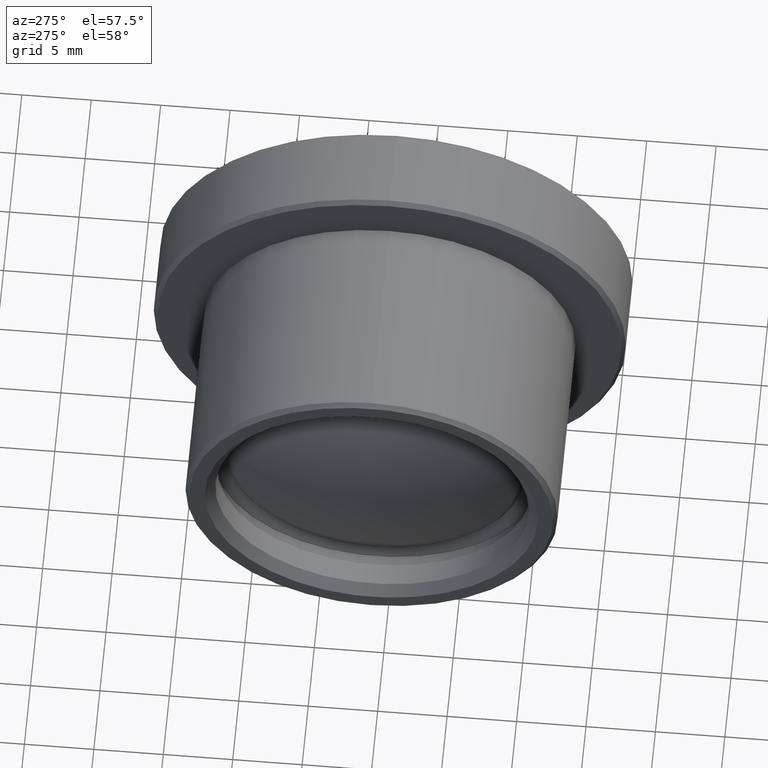
[diagram: clean part render]
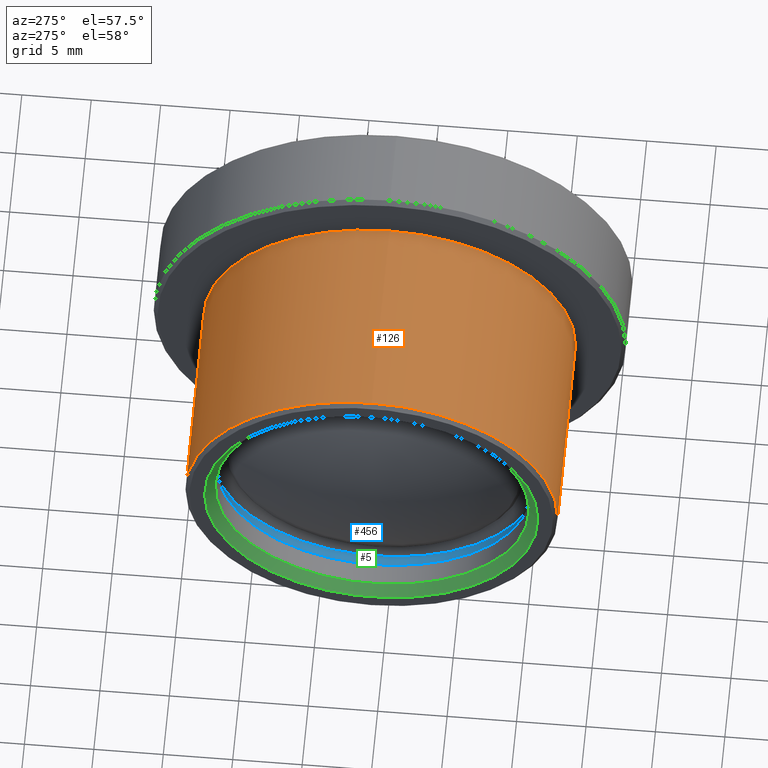
[diagram: same view with three faces highlighted in distinct colors, each labeled with its STEP entity id]
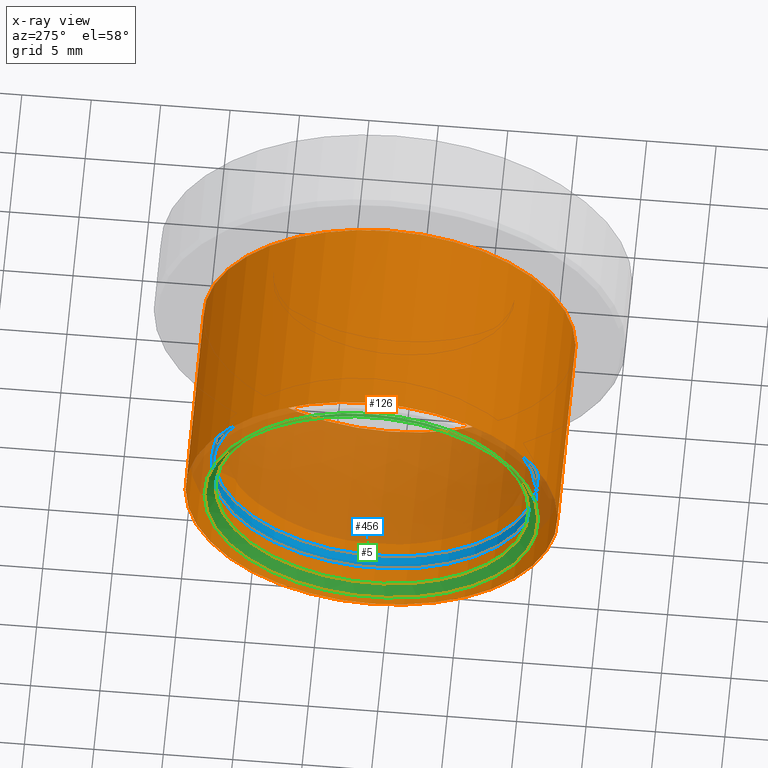
[diagram: x-ray of the same camera — body ghosted, the three highlighted faces saturated]
A machine part, auxiliary view with three faces highlighted in distinct colors.
The next image is the same camera in x-ray (body ghosted, the three faces saturated) — at least one of them is partly hidden behind the body in this view.
Their STEP definitions:

[orange] entity #126 — the highlighted cylindrical surface (bore or boss wall) has radius 13.4 mm, axis along (-1, -0, -0).
#14 = CARTESIAN_POINT ( 'NONE',  ( 7641.280875762231517, -204.0133495471515630, 0.000000000000000000 ) ) ;
#16 = CIRCLE ( 'NONE', #473, 13.40000000572944039 ) ;
#27 = DIRECTION ( 'NONE',  ( -1.000000000000000000, -0.000000000000000000, -0.000000000000000000 ) ) ;
#38 = FACE_OUTER_BOUND ( 'NONE', #330, .T. ) ;
#43 = CARTESIAN_POINT ( 'NONE',  ( 7655.980875221367569, -204.0133495471515630, 13.40000000572944039 ) ) ;
#49 = DIRECTION ( 'NONE',  ( 0.000000000000000000, 0.000000000000000000, 1.000000000000000000 ) ) ;
#73 = CARTESIAN_POINT ( 'NONE',  ( 7639.495609507284826, -204.0133495471515630, 0.000000000000000000 ) ) ;
#126 = ADVANCED_FACE ( 'NONE', ( #266, #38 ), #416, .T. ) ;
#137 = CARTESIAN_POINT ( 'NONE',  ( 7655.980875221367569, -204.0133495471515630, 0.000000000000000000 ) ) ;
#190 = DIRECTION ( 'NONE',  ( -1.000000000000000000, -0.000000000000000000, -0.000000000000000000 ) ) ;
#201 = EDGE_CURVE ( 'NONE', #270, #270, #16, .T. ) ;
#223 = CIRCLE ( 'NONE', #288, 13.40000000572944039 ) ;
#250 = ORIENTED_EDGE ( 'NONE', *, *, #201, .T. ) ;
#266 = FACE_OUTER_BOUND ( 'NONE', #290, .T. ) ;
#270 = VERTEX_POINT ( 'NONE', #307 ) ;
#281 = DIRECTION ( 'NONE',  ( 1.000000000000000000, 0.000000000000000000, 0.000000000000000000 ) ) ;
#288 = AXIS2_PLACEMENT_3D ( 'NONE', #137, #27, #363 ) ;
#290 = EDGE_LOOP ( 'NONE', ( #250 ) ) ;
#307 = CARTESIAN_POINT ( 'NONE',  ( 7641.280875762231517, -204.0133495471515630, 13.40000000572944039 ) ) ;
#330 = EDGE_LOOP ( 'NONE', ( #447 ) ) ;
#363 = DIRECTION ( 'NONE',  ( 0.000000000000000000, 0.000000000000000000, 1.000000000000000000 ) ) ;
#376 = DIRECTION ( 'NONE',  ( 0.000000000000000000, 0.000000000000000000, 1.000000000000000000 ) ) ;
#410 = EDGE_CURVE ( 'NONE', #415, #415, #223, .T. ) ;
#415 = VERTEX_POINT ( 'NONE', #43 ) ;
#416 = CYLINDRICAL_SURFACE ( 'NONE', #483, 13.40000000572944039 ) ;
#447 = ORIENTED_EDGE ( 'NONE', *, *, #410, .T. ) ;
#473 = AXIS2_PLACEMENT_3D ( 'NONE', #14, #281, #49 ) ;
#483 = AXIS2_PLACEMENT_3D ( 'NONE', #73, #190, #376 ) ;

[blue] entity #456 — the highlighted cylindrical surface (bore or boss wall) has radius 11.7 mm, axis along (-1, -0, -0).
#41 = AXIS2_PLACEMENT_3D ( 'NONE', #462, #115, #274 ) ;
#63 = AXIS2_PLACEMENT_3D ( 'NONE', #289, #440, #212 ) ;
#67 = DIRECTION ( 'NONE',  ( 0.000000000000000000, 0.000000000000000000, 1.000000000000000000 ) ) ;
#99 = CIRCLE ( 'NONE', #63, 11.70000034783300080 ) ;
#104 = CYLINDRICAL_SURFACE ( 'NONE', #240, 11.70000034783300080 ) ;
#113 = VERTEX_POINT ( 'NONE', #424 ) ;
#115 = DIRECTION ( 'NONE',  ( -1.000000000000000000, -0.000000000000000000, -0.000000000000000000 ) ) ;
#133 = FACE_OUTER_BOUND ( 'NONE', #179, .T. ) ;
#152 = VERTEX_POINT ( 'NONE', #311 ) ;
#167 = EDGE_LOOP ( 'NONE', ( #492 ) ) ;
#170 = EDGE_CURVE ( 'NONE', #152, #152, #446, .T. ) ;
#179 = EDGE_LOOP ( 'NONE', ( #252 ) ) ;
#212 = DIRECTION ( 'NONE',  ( 0.000000000000000000, 0.000000000000000000, 1.000000000000000000 ) ) ;
#240 = AXIS2_PLACEMENT_3D ( 'NONE', #409, #262, #67 ) ;
#252 = ORIENTED_EDGE ( 'NONE', *, *, #170, .F. ) ;
#260 = FACE_OUTER_BOUND ( 'NONE', #167, .T. ) ;
#262 = DIRECTION ( 'NONE',  ( -1.000000000000000000, -0.000000000000000000, -0.000000000000000000 ) ) ;
#274 = DIRECTION ( 'NONE',  ( 0.000000000000000000, 0.000000000000000000, 1.000000000000000000 ) ) ;
#289 = CARTESIAN_POINT ( 'NONE',  ( 7643.280876115796673, -204.0133495471515630, 0.000000000000000000 ) ) ;
#311 = CARTESIAN_POINT ( 'NONE',  ( 7644.280875221364113, -204.0133495471515630, 11.70000034783300080 ) ) ;
#409 = CARTESIAN_POINT ( 'NONE',  ( 7639.495609507284826, -204.0133495471515630, 0.000000000000000000 ) ) ;
#424 = CARTESIAN_POINT ( 'NONE',  ( 7643.280876115796673, -204.0133495471515630, 11.70000034783300080 ) ) ;
#440 = DIRECTION ( 'NONE',  ( -1.000000000000000000, -0.000000000000000000, -0.000000000000000000 ) ) ;
#446 = CIRCLE ( 'NONE', #41, 11.70000034783300080 ) ;
#456 = ADVANCED_FACE ( 'NONE', ( #133, #260 ), #104, .F. ) ;
#462 = CARTESIAN_POINT ( 'NONE',  ( 7644.280875221364113, -204.0133495471515630, 0.000000000000000000 ) ) ;
#482 = EDGE_CURVE ( 'NONE', #113, #113, #99, .T. ) ;
#492 = ORIENTED_EDGE ( 'NONE', *, *, #482, .T. ) ;

[green] entity #5 — the highlighted conical surface has half-angle 45 deg.
#5 = ADVANCED_FACE ( 'NONE', ( #408, #295 ), #438, .F. ) ;
#54 = AXIS2_PLACEMENT_3D ( 'NONE', #412, #253, #404 ) ;
#72 = VERTEX_POINT ( 'NONE', #268 ) ;
#75 = DIRECTION ( 'NONE',  ( -1.000000000000000000, -3.700743415416954124E-14, -0.000000000000000000 ) ) ;
#101 = ORIENTED_EDGE ( 'NONE', *, *, #472, .F. ) ;
#166 = CARTESIAN_POINT ( 'NONE',  ( 7641.680876115799038, -204.0133495471515630, 0.000000000000000000 ) ) ;
#222 = AXIS2_PLACEMENT_3D ( 'NONE', #421, #75, #495 ) ;
#253 = DIRECTION ( 'NONE',  ( -1.000000000000000000, -3.700743415416954124E-14, -0.000000000000000000 ) ) ;
#268 = CARTESIAN_POINT ( 'NONE',  ( 7641.680876115799038, -204.0133495471515630, 11.30000034783485319 ) ) ;
#275 = CARTESIAN_POINT ( 'NONE',  ( 7640.980875767965699, -216.0133495471523304, 0.000000000000000000 ) ) ;
#295 = FACE_OUTER_BOUND ( 'NONE', #368, .T. ) ;
#323 = CIRCLE ( 'NONE', #474, 11.30000034783485319 ) ;
#328 = DIRECTION ( 'NONE',  ( 0.000000000000000000, 0.000000000000000000, 1.000000000000000000 ) ) ;
#329 = DIRECTION ( 'NONE',  ( -1.000000000000000000, -0.000000000000000000, -0.000000000000000000 ) ) ;
#344 = EDGE_CURVE ( 'NONE', #496, #496, #458, .T. ) ;
#368 = EDGE_LOOP ( 'NONE', ( #435 ) ) ;
#404 = DIRECTION ( 'NONE',  ( 7.401486830833908248E-14, -1.000000000000000000, 0.000000000000000000 ) ) ;
#408 = FACE_BOUND ( 'NONE', #489, .T. ) ;
#412 = CARTESIAN_POINT ( 'NONE',  ( 7640.980875767964790, -204.0133495471515630, 0.000000000000000000 ) ) ;
#421 = CARTESIAN_POINT ( 'NONE',  ( 7640.980875767964790, -204.0133495471515630, 0.000000000000000000 ) ) ;
#435 = ORIENTED_EDGE ( 'NONE', *, *, #344, .T. ) ;
#438 = CONICAL_SURFACE ( 'NONE', #222, 12.00000000000076028, 0.7853976664914881223 ) ;
#458 = CIRCLE ( 'NONE', #54, 12.00000000000076028 ) ;
#472 = EDGE_CURVE ( 'NONE', #72, #72, #323, .T. ) ;
#474 = AXIS2_PLACEMENT_3D ( 'NONE', #166, #329, #328 ) ;
#489 = EDGE_LOOP ( 'NONE', ( #101 ) ) ;
#495 = DIRECTION ( 'NONE',  ( 7.401486830833908248E-14, -1.000000000000000000, 0.000000000000000000 ) ) ;
#496 = VERTEX_POINT ( 'NONE', #275 ) ;